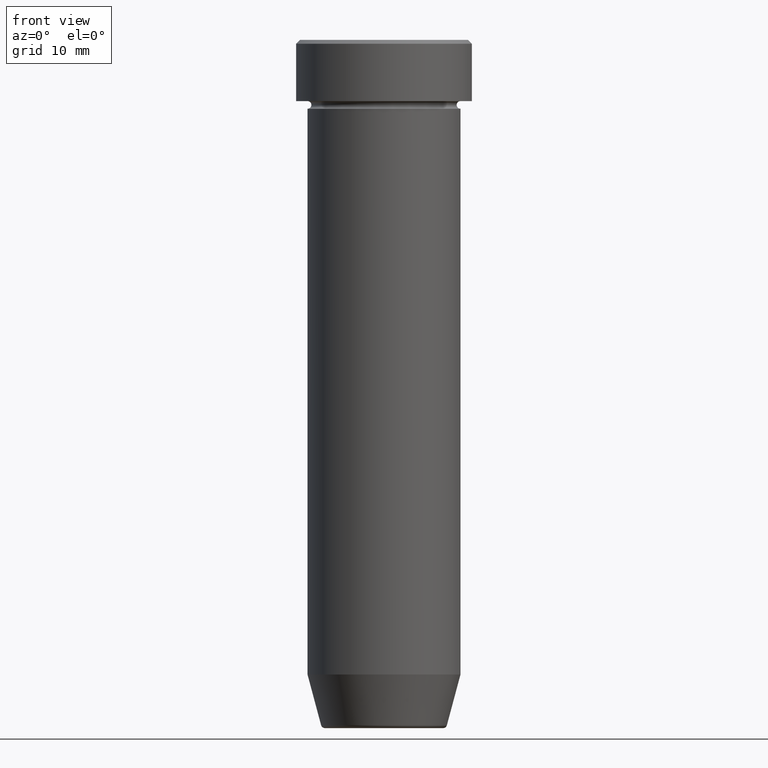
[diagram: clean part render]
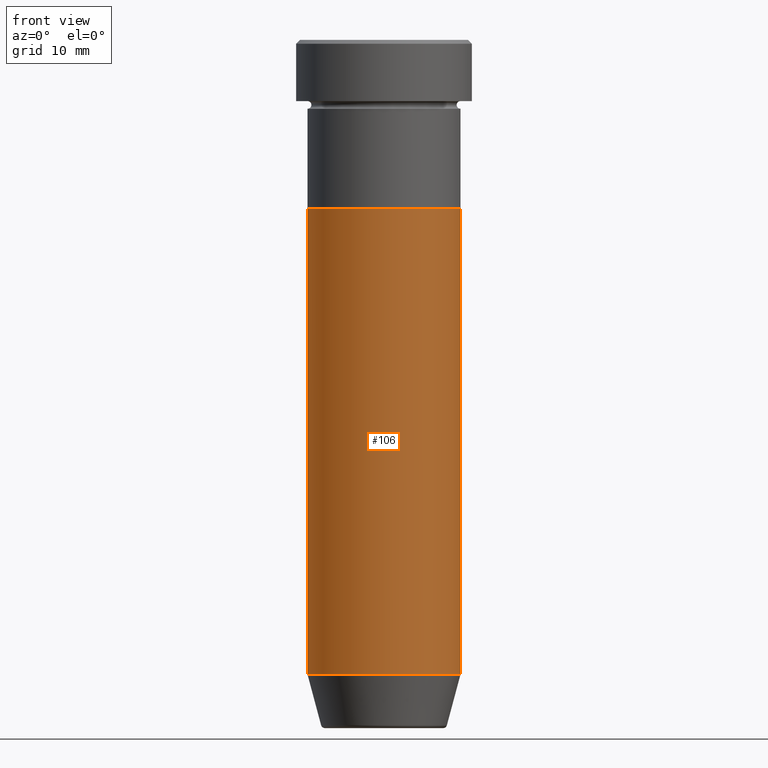
[diagram: same view with one face highlighted and labeled with its STEP entity id]
A machine part, front view. The second image highlights one B-rep face of the part: STEP entity #106.
In plain terms, the highlighted cylindrical surface (partial cylindrical patch) has radius 10 mm, axis along (-0, -0, 1).
Its self-contained STEP definition (entity closure, byte-faithful):
#12 = CARTESIAN_POINT ( 'NONE',  ( 0.000000000000000000, 0.000000000000000000, -22.00000000000000000 ) ) ;
#15 = ORIENTED_EDGE ( 'NONE', *, *, #311, .F. ) ;
#43 = AXIS2_PLACEMENT_3D ( 'NONE', #12, #235, #98 ) ;
#50 = CARTESIAN_POINT ( 'NONE',  ( -10.00000000000000000, 1.224646799147353256E-15, -22.00000000000000000 ) ) ;
#92 = VERTEX_POINT ( 'NONE', #308 ) ;
#98 = DIRECTION ( 'NONE',  ( 1.000000000000000000, 0.000000000000000000, 0.000000000000000000 ) ) ;
#102 = VERTEX_POINT ( 'NONE', #580 ) ;
#106 = ADVANCED_FACE ( 'NONE', ( #163 ), #304, .T. ) ;
#124 = DIRECTION ( 'NONE',  ( -0.000000000000000000, -0.000000000000000000, 1.000000000000000000 ) ) ;
#163 = FACE_OUTER_BOUND ( 'NONE', #503, .T. ) ;
#166 = DIRECTION ( 'NONE',  ( 1.000000000000000000, 0.000000000000000000, 0.000000000000000000 ) ) ;
#175 = DIRECTION ( 'NONE',  ( -0.000000000000000000, -0.000000000000000000, 1.000000000000000000 ) ) ;
#193 = VECTOR ( 'NONE', #288, 1000.000000000000000 ) ;
#196 = CARTESIAN_POINT ( 'NONE',  ( -9.999999999999998224, 1.224646799147353059E-15, 0.000000000000000000 ) ) ;
#235 = DIRECTION ( 'NONE',  ( -0.000000000000000000, -0.000000000000000000, 1.000000000000000000 ) ) ;
#244 = LINE ( 'NONE', #196, #193 ) ;
#248 = VECTOR ( 'NONE', #175, 1000.000000000000000 ) ;
#251 = ORIENTED_EDGE ( 'NONE', *, *, #377, .F. ) ;
#253 = AXIS2_PLACEMENT_3D ( 'NONE', #494, #490, #166 ) ;
#288 = DIRECTION ( 'NONE',  ( -0.000000000000000000, -0.000000000000000000, 1.000000000000000000 ) ) ;
#304 = CYLINDRICAL_SURFACE ( 'NONE', #253, 9.999999999999998224 ) ;
#307 = AXIS2_PLACEMENT_3D ( 'NONE', #440, #124, #394 ) ;
#308 = CARTESIAN_POINT ( 'NONE',  ( -9.999999999999998224, 1.224646799147353059E-15, -82.99999999999998579 ) ) ;
#311 = EDGE_CURVE ( 'NONE', #327, #436, #444, .T. ) ;
#327 = VERTEX_POINT ( 'NONE', #50 ) ;
#335 = CARTESIAN_POINT ( 'NONE',  ( 10.00000000000000000, 0.000000000000000000, -22.00000000000000000 ) ) ;
#377 = EDGE_CURVE ( 'NONE', #92, #327, #244, .T. ) ;
#394 = DIRECTION ( 'NONE',  ( 1.000000000000000000, 0.000000000000000000, 0.000000000000000000 ) ) ;
#403 = CIRCLE ( 'NONE', #307, 9.999999999999998224 ) ;
#436 = VERTEX_POINT ( 'NONE', #335 ) ;
#440 = CARTESIAN_POINT ( 'NONE',  ( 0.000000000000000000, 0.000000000000000000, -82.99999999999998579 ) ) ;
#444 = CIRCLE ( 'NONE', #43, 10.00000000000000000 ) ;
#449 = CARTESIAN_POINT ( 'NONE',  ( 9.999999999999998224, 0.000000000000000000, 0.000000000000000000 ) ) ;
#490 = DIRECTION ( 'NONE',  ( -0.000000000000000000, -0.000000000000000000, 1.000000000000000000 ) ) ;
#492 = EDGE_CURVE ( 'NONE', #102, #436, #528, .T. ) ;
#494 = CARTESIAN_POINT ( 'NONE',  ( 0.000000000000000000, 0.000000000000000000, 0.000000000000000000 ) ) ;
#503 = EDGE_LOOP ( 'NONE', ( #251, #568, #557, #15 ) ) ;
#528 = LINE ( 'NONE', #449, #248 ) ;
#557 = ORIENTED_EDGE ( 'NONE', *, *, #492, .T. ) ;
#568 = ORIENTED_EDGE ( 'NONE', *, *, #597, .T. ) ;
#580 = CARTESIAN_POINT ( 'NONE',  ( 9.999999999999998224, 0.000000000000000000, -82.99999999999998579 ) ) ;
#597 = EDGE_CURVE ( 'NONE', #92, #102, #403, .T. ) ;